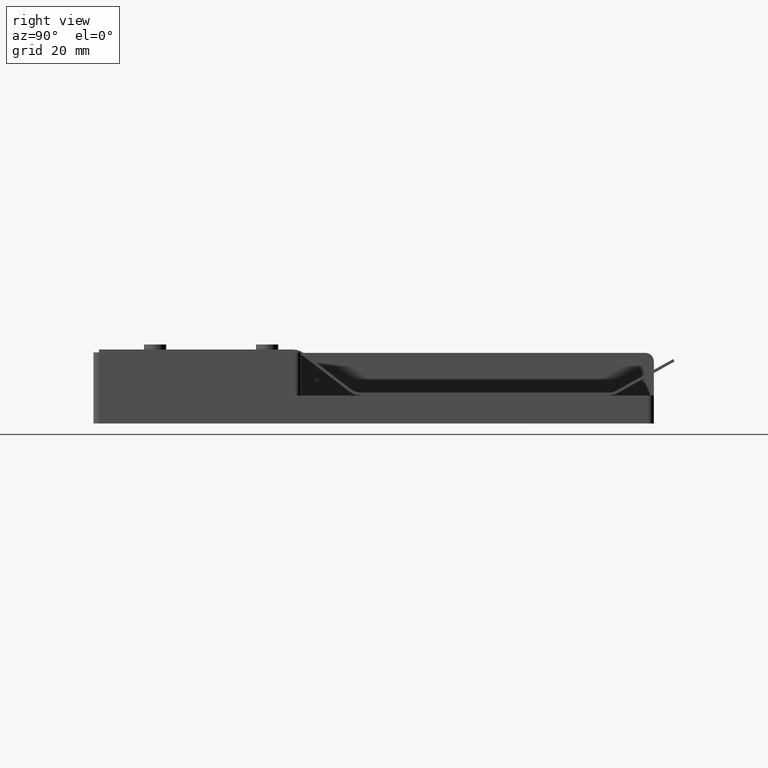
[diagram: clean part render]
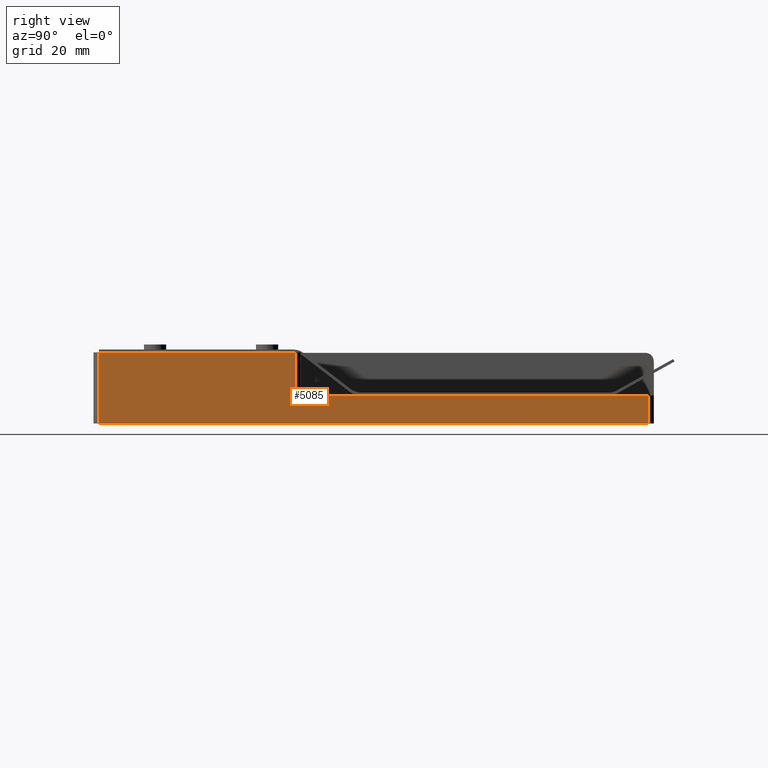
[diagram: same view with one face highlighted and labeled with its STEP entity id]
A machine part, right view. The second image highlights one B-rep face of the part: STEP entity #5085.
In plain terms, the highlighted planar face has unit normal (-1, 0, 0).
Its self-contained STEP definition (entity closure, byte-faithful):
#158 = CARTESIAN_POINT ( 'NONE',  ( 14.57269647561032500, -4.591615161343519900, 12.69999999999763300 ) ) ;
#159 = DIRECTION ( 'NONE',  ( 0.0000000000000000000, 1.000000000000000000, 0.0000000000000000000 ) ) ;
#244 = CARTESIAN_POINT ( 'NONE',  ( 14.57269647561043500, -40.59921972408115900, 12.69999999999763300 ) ) ;
#246 = DIRECTION ( 'NONE',  ( -0.0000000000000000000, -0.0000000000000000000, -1.000000000000000000 ) ) ;
#693 = FACE_OUTER_BOUND ( 'NONE', #2923, .T. ) ;
#883 = VECTOR ( 'NONE', #246, 1000.000000000000000 ) ;
#886 = LINE ( 'NONE', #244, #883 ) ;
#917 = VECTOR ( 'NONE', #159, 1000.000000000000000 ) ;
#919 = LINE ( 'NONE', #158, #917 ) ;
#1099 = VECTOR ( 'NONE', #3103, 1000.000000000000000 ) ;
#1102 = LINE ( 'NONE', #3102, #1099 ) ;
#1135 = VECTOR ( 'NONE', #3051, 1000.000000000000000 ) ;
#1138 = LINE ( 'NONE', #3049, #1135 ) ;
#1181 = VECTOR ( 'NONE', #3971, 1000.000000000000000 ) ;
#1183 = VECTOR ( 'NONE', #3958, 1000.000000000000000 ) ;
#1184 = LINE ( 'NONE', #3969, #1181 ) ;
#1185 = LINE ( 'NONE', #3959, #1183 ) ;
#2502 = VERTEX_POINT ( 'NONE', #5195 ) ;
#2526 = VERTEX_POINT ( 'NONE', #5174 ) ;
#2527 = VERTEX_POINT ( 'NONE', #4015 ) ;
#2539 = VERTEX_POINT ( 'NONE', #4753 ) ;
#2543 = VERTEX_POINT ( 'NONE', #4757 ) ;
#2566 = VERTEX_POINT ( 'NONE', #4780 ) ;
#2860 = ORIENTED_EDGE ( 'NONE', *, *, #4970, .T. ) ;
#2861 = ORIENTED_EDGE ( 'NONE', *, *, #4947, .F. ) ;
#2862 = ORIENTED_EDGE ( 'NONE', *, *, #4332, .F. ) ;
#2863 = ORIENTED_EDGE ( 'NONE', *, *, #4331, .F. ) ;
#2864 = ORIENTED_EDGE ( 'NONE', *, *, #4401, .F. ) ;
#2865 = ORIENTED_EDGE ( 'NONE', *, *, #4379, .T. ) ;
#2923 = EDGE_LOOP ( 'NONE', ( #2865, #2864, #2863, #2862, #2861, #2860 ) ) ;
#3049 = CARTESIAN_POINT ( 'NONE',  ( 14.57269647561032500, -4.591615161343519900, -2.365295459494376500E-012 ) ) ;
#3051 = DIRECTION ( 'NONE',  ( 0.0000000000000000000, 1.000000000000000000, 0.0000000000000000000 ) ) ;
#3102 = CARTESIAN_POINT ( 'NONE',  ( 14.57269647561032500, 57.40078027591884100, 4.999999999997634800 ) ) ;
#3103 = DIRECTION ( 'NONE',  ( -0.0000000000000000000, -0.0000000000000000000, -1.000000000000000000 ) ) ;
#3467 = CARTESIAN_POINT ( 'NONE',  ( 14.57269647561032500, -4.591615161343519900, 4.999999999997634800 ) ) ;
#3470 = PLANE ( 'NONE',  #4154 ) ;
#3475 = DIRECTION ( 'NONE',  ( -1.000000000000000000, 0.0000000000000000000, 0.0000000000000000000 ) ) ;
#3476 = DIRECTION ( 'NONE',  ( 0.0000000000000000000, 0.0000000000000000000, 1.000000000000000000 ) ) ;
#3958 = DIRECTION ( 'NONE',  ( 0.0000000000000000000, 1.000000000000000000, 0.0000000000000000000 ) ) ;
#3959 = CARTESIAN_POINT ( 'NONE',  ( 14.57269647561032500, -4.591615161343519900, 4.999999999997634800 ) ) ;
#3969 = CARTESIAN_POINT ( 'NONE',  ( 14.57269647561032500, -5.599219724081272900, 12.69999999999763300 ) ) ;
#3971 = DIRECTION ( 'NONE',  ( -0.0000000000000000000, -0.0000000000000000000, -1.000000000000000000 ) ) ;
#4015 = CARTESIAN_POINT ( 'NONE',  ( 14.57269647561043500, -40.59921972408115900, -2.365295459494376500E-012 ) ) ;
#4154 = AXIS2_PLACEMENT_3D ( 'NONE', #3467, #3475, #3476 ) ;
#4331 = EDGE_CURVE ( 'NONE', #2526, #2566, #1185, .T. ) ;
#4332 = EDGE_CURVE ( 'NONE', #2543, #2526, #1184, .T. ) ;
#4379 = EDGE_CURVE ( 'NONE', #2527, #2502, #1138, .T. ) ;
#4401 = EDGE_CURVE ( 'NONE', #2566, #2502, #1102, .T. ) ;
#4753 = CARTESIAN_POINT ( 'NONE',  ( 14.57269647561043500, -40.59921972408115900, 12.69999999999763300 ) ) ;
#4757 = CARTESIAN_POINT ( 'NONE',  ( 14.57269647561032500, -5.599219724081272900, 12.69999999999763300 ) ) ;
#4780 = CARTESIAN_POINT ( 'NONE',  ( 14.57269647561032500, 57.40078027591884100, 4.999999999997634800 ) ) ;
#4947 = EDGE_CURVE ( 'NONE', #2539, #2543, #919, .T. ) ;
#4970 = EDGE_CURVE ( 'NONE', #2539, #2527, #886, .T. ) ;
#5085 = ADVANCED_FACE ( 'NONE', ( #693 ), #3470, .F. ) ;
#5174 = CARTESIAN_POINT ( 'NONE',  ( 14.57269647561032500, -5.599219724081272900, 4.999999999997634800 ) ) ;
#5195 = CARTESIAN_POINT ( 'NONE',  ( 14.57269647561032500, 57.40078027591884100, -2.365295459494376500E-012 ) ) ;